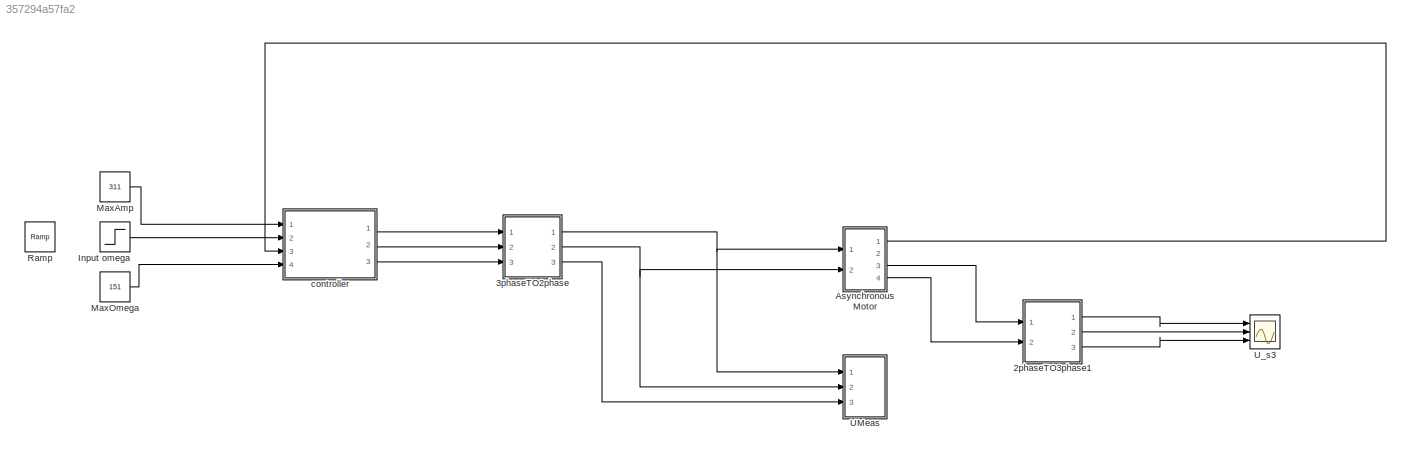
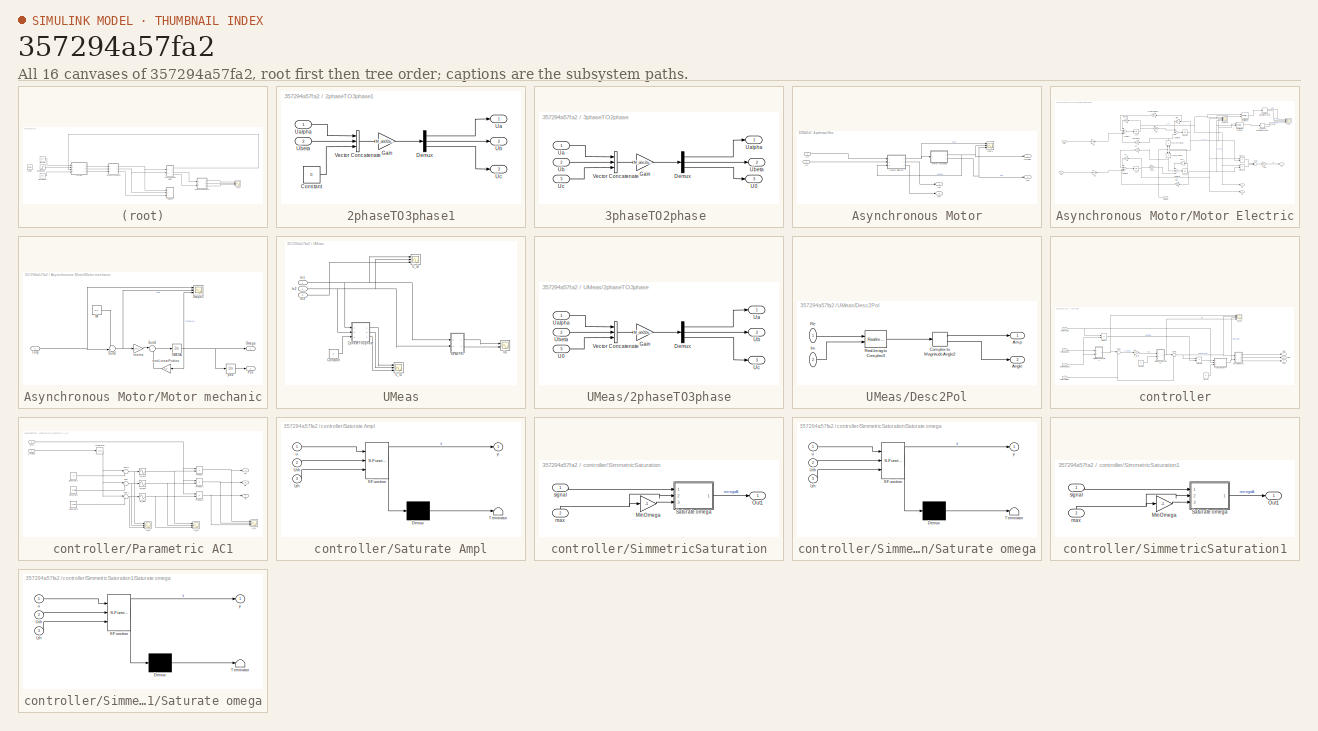
[diagram: thumbnail index - all 16 canvases of the model, root first then tree order]
MODEL slx_357294a57fa2
KIND model
CONFIG AbsTol = auto
CONFIG FixedStep = 0.00005
CONFIG MaxStep = auto
CONFIG MinStep = auto
CONFIG RelTol = 1e-3
CONFIG SampleTimeConstraint = Unconstrained
CONFIG Solver = FixedStepAuto
CONFIG SolverMode = Auto
CONFIG SolverName = FixedStepAuto
CONFIG StartTime = 0.0
CONFIG StopTime = 3
BLOCK [SubSystem] 2phaseTO3phase1
  Ports = [2, 3]
  RequestExecContextInheritance = off
  Variant = off
BLOCK [Constant] 2phaseTO3phase1/Constant
  Value = 0
BLOCK [Demux] 2phaseTO3phase1/Demux
  DisplayOption = bar
  Outputs = 3
  Ports = [1, 3]
BLOCK [Gain] 2phaseTO3phase1/Gain
  Gain = M_ab02abc
  Multiplication = Matrix(K*u)
  OutDataTypeStr = Inherit: Inherit via internal rule
  ParamDataTypeStr = Inherit: Inherit via internal rule
  SaturateOnIntegerOverflow = off
BLOCK [Outport] 2phaseTO3phase1/Ua
  IconDisplay = Port number
BLOCK [Inport] 2phaseTO3phase1/Ualpha
  IconDisplay = Port number
BLOCK [Outport] 2phaseTO3phase1/Ub
  IconDisplay = Port number
  Port = 2
BLOCK [Inport] 2phaseTO3phase1/Ubeta
  IconDisplay = Port number
  Port = 2
BLOCK [Outport] 2phaseTO3phase1/Uc
  IconDisplay = Port number
  Port = 3
BLOCK [Concatenate] 2phaseTO3phase1/Vector Concatenate
  NumInputs = 3
  Ports = [3, 1]
BLOCK [SubSystem] 3phaseTO2phase 
  Ports = [3, 3]
  RequestExecContextInheritance = off
  Variant = off
BLOCK [Demux] 3phaseTO2phase /Demux
  DisplayOption = bar
  Outputs = 3
  Ports = [1, 3]
BLOCK [Gain] 3phaseTO2phase /Gain
  Gain = M_abc2ab0
  Multiplication = Matrix(K*u)
  OutDataTypeStr = Inherit: Inherit via internal rule
  ParamDataTypeStr = Inherit: Inherit via internal rule
  SaturateOnIntegerOverflow = off
BLOCK [Outport] 3phaseTO2phase /U0
  IconDisplay = Port number
  Port = 3
BLOCK [Inport] 3phaseTO2phase /Ua
  IconDisplay = Port number
BLOCK [Outport] 3phaseTO2phase /Ualpha
  IconDisplay = Port number
BLOCK [Inport] 3phaseTO2phase /Ub
  IconDisplay = Port number
  Port = 2
BLOCK [Outport] 3phaseTO2phase /Ubeta
  IconDisplay = Port number
  Port = 2
BLOCK [Inport] 3phaseTO2phase /Uc
  IconDisplay = Port number
  Port = 3
BLOCK [Concatenate] 3phaseTO2phase /Vector Concatenate
  NumInputs = 3
  Ports = [3, 1]
BLOCK [SubSystem] Asynchronous Motor
  Ports = [2, 4]
  RequestExecContextInheritance = off
  Variant = off
BLOCK [Outport] Asynchronous Motor/Isd
  IconDisplay = Port number
  Port = 3
BLOCK [Outport] Asynchronous Motor/Isq
  IconDisplay = Port number
  Port = 4
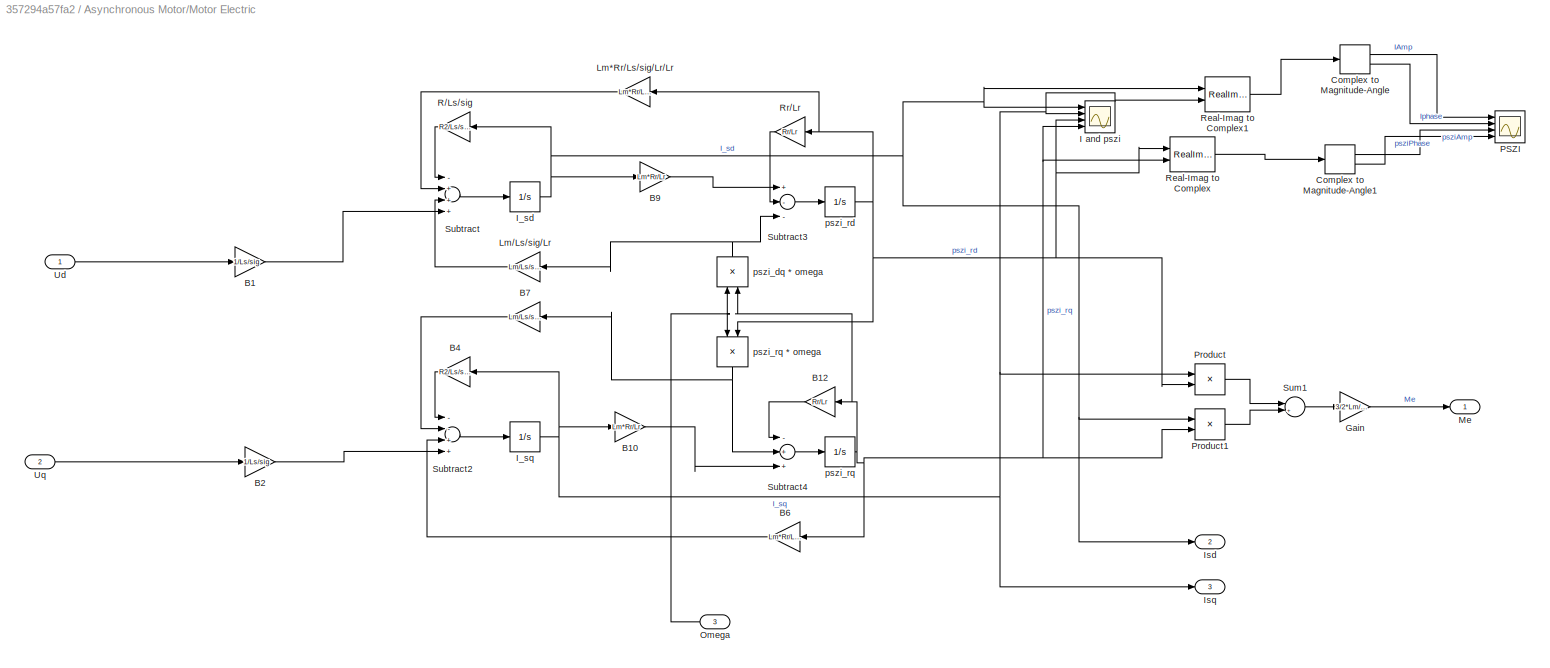
BLOCK [SubSystem] Asynchronous Motor/Motor Electric
  Ports = [3, 3]
  RequestExecContextInheritance = off
  Variant = off
BLOCK [Gain] Asynchronous Motor/Motor Electric/B1
  Gain = 1/Ls/sig
  Multiplication = Matrix(K*u)
  OutDataTypeStr = Inherit: Inherit via internal rule
  ParamDataTypeStr = Inherit: Inherit via internal rule
  SaturateOnIntegerOverflow = off
BLOCK [Gain] Asynchronous Motor/Motor Electric/B10
  Gain = Lm*Rr/Lr
  Multiplication = Matrix(K*u)
  OutDataTypeStr = Inherit: Inherit via internal rule
  ParamDataTypeStr = Inherit: Inherit via internal rule
  SaturateOnIntegerOverflow = off
BLOCK [Gain] Asynchronous Motor/Motor Electric/B12
  Gain = Rr/Lr
  Multiplication = Matrix(K*u)
  OutDataTypeStr = Inherit: Inherit via internal rule
  ParamDataTypeStr = Inherit: Inherit via internal rule
  SaturateOnIntegerOverflow = off
BLOCK [Gain] Asynchronous Motor/Motor Electric/B2
  Gain = 1/Ls/sig
  Multiplication = Matrix(K*u)
  OutDataTypeStr = Inherit: Inherit via internal rule
  ParamDataTypeStr = Inherit: Inherit via internal rule
  SaturateOnIntegerOverflow = off
BLOCK [Gain] Asynchronous Motor/Motor Electric/B4
  Gain = R2/Ls/sig
  Multiplication = Matrix(K*u)
  OutDataTypeStr = Inherit: Inherit via internal rule
  ParamDataTypeStr = Inherit: Inherit via internal rule
  SaturateOnIntegerOverflow = off
BLOCK [Gain] Asynchronous Motor/Motor Electric/B6
  Gain = Lm*Rr/Ls/sig/Lr/Lr
  Multiplication = Matrix(K*u)
  OutDataTypeStr = Inherit: Inherit via internal rule
  ParamDataTypeStr = Inherit: Inherit via internal rule
  SaturateOnIntegerOverflow = off
BLOCK [Gain] Asynchronous Motor/Motor Electric/B7
  Gain = Lm/Ls/sig/Lr
  Multiplication = Matrix(K*u)
  OutDataTypeStr = Inherit: Inherit via internal rule
  ParamDataTypeStr = Inherit: Inherit via internal rule
  SaturateOnIntegerOverflow = off
BLOCK [Gain] Asynchronous Motor/Motor Electric/B9
  Gain = Lm*Rr/Lr
  Multiplication = Matrix(K*u)
  OutDataTypeStr = Inherit: Inherit via internal rule
  ParamDataTypeStr = Inherit: Inherit via internal rule
  SaturateOnIntegerOverflow = off
BLOCK [ComplexToMagnitudeAngle] Asynchronous Motor/Motor Electric/Complex to Magnitude-Angle
  Ports = [1, 2]
BLOCK [ComplexToMagnitudeAngle] Asynchronous Motor/Motor Electric/Complex to Magnitude-Angle1
  Ports = [1, 2]
BLOCK [Gain] Asynchronous Motor/Motor Electric/Gain
  Gain = 3/2*Lm/Lr*p
  OutDataTypeStr = Inherit: Inherit via internal rule
  ParamDataTypeStr = Inherit: Inherit via internal rule
  SaturateOnIntegerOverflow = off
BLOCK [Scope] Asynchronous Motor/Motor Electric/I and pszi
  NumInputPorts = 4
  Ports = [4]
  ScopeSpecificationString = Simulink.scopes.TimeScopeBlockCfg('CurrentConfiguration', extmgr.ConfigurationSet(extmgr.Configuration('Core','General UI',true),extmgr.Configuration('Core','Source UI',true),extmgr.Configuration('Sources','WiredSimulink',true),extmgr.Configuration('Visuals','Time Domain',true,'SerializedDisplays',{struct('MinYLimReal','-0.35721','MaxYLimReal','0.2837','YLabelReal','','MinYLimMag','0.00000','MaxYL...<+1422ch>
BLOCK [Integrator] Asynchronous Motor/Motor Electric/I_sd
  Ports = [1, 1]
BLOCK [Integrator] Asynchronous Motor/Motor Electric/I_sq
  Ports = [1, 1]
BLOCK [Outport] Asynchronous Motor/Motor Electric/Isd
  IconDisplay = Port number
  Port = 2
BLOCK [Outport] Asynchronous Motor/Motor Electric/Isq
  IconDisplay = Port number
  Port = 3
BLOCK [Gain] Asynchronous Motor/Motor Electric/Lm*Rr//Ls//sig//Lr//Lr
  Gain = Lm*Rr/Ls/sig/Lr/Lr
  Multiplication = Matrix(K*u)
  OutDataTypeStr = Inherit: Inherit via internal rule
  ParamDataTypeStr = Inherit: Inherit via internal rule
  SaturateOnIntegerOverflow = off
BLOCK [Gain] Asynchronous Motor/Motor Electric/Lm//Ls//sig//Lr
  Gain = Lm/Ls/sig/Lr
  Multiplication = Matrix(K*u)
  OutDataTypeStr = Inherit: Inherit via internal rule
  ParamDataTypeStr = Inherit: Inherit via internal rule
  SaturateOnIntegerOverflow = off
BLOCK [Outport] Asynchronous Motor/Motor Electric/Me
  IconDisplay = Port number
BLOCK [Inport] Asynchronous Motor/Motor Electric/Omega
  IconDisplay = Port number
  Port = 3
BLOCK [Scope] Asynchronous Motor/Motor Electric/PSZI
  NumInputPorts = 4
  Ports = [4]
  ScopeSpecificationString = Simulink.scopes.TimeScopeBlockCfg('CurrentConfiguration', extmgr.ConfigurationSet(extmgr.Configuration('Core','General UI',true),extmgr.Configuration('Core','Source UI',true),extmgr.Configuration('Sources','WiredSimulink',true,'DataLoggingVariableName','ScopeData2'),extmgr.Configuration('Visuals','Time Domain',true,'SerializedDisplays',{struct('MinYLimReal','-0.98955','MaxYLimReal','8.90592','YLab...<+3526ch>
BLOCK [Product] Asynchronous Motor/Motor Electric/Product
  InputSameDT = off
  OutDataTypeStr = Inherit: Inherit via internal rule
  Ports = [2, 1]
  RndMeth = Floor
  SaturateOnIntegerOverflow = off
BLOCK [Product] Asynchronous Motor/Motor Electric/Product1
  InputSameDT = off
  OutDataTypeStr = Inherit: Inherit via internal rule
  Ports = [2, 1]
  RndMeth = Floor
  SaturateOnIntegerOverflow = off
BLOCK [Gain] Asynchronous Motor/Motor Electric/R//Ls//sig
  Gain = R2/Ls/sig
  Multiplication = Matrix(K*u)
  OutDataTypeStr = Inherit: Inherit via internal rule
  ParamDataTypeStr = Inherit: Inherit via internal rule
  SaturateOnIntegerOverflow = off
BLOCK [RealImagToComplex] Asynchronous Motor/Motor Electric/Real-Imag to Complex
  Ports = [2, 1]
BLOCK [RealImagToComplex] Asynchronous Motor/Motor Electric/Real-Imag to Complex1
  Ports = [2, 1]
BLOCK [Gain] Asynchronous Motor/Motor Electric/Rr//Lr
  Gain = Rr/Lr
  Multiplication = Matrix(K*u)
  OutDataTypeStr = Inherit: Inherit via internal rule
  ParamDataTypeStr = Inherit: Inherit via internal rule
  SaturateOnIntegerOverflow = off
BLOCK [Sum] Asynchronous Motor/Motor Electric/Subtract
  InputSameDT = off
  Inputs = -+++
  OutDataTypeStr = Inherit: Inherit via internal rule
  Ports = [4, 1]
  SaturateOnIntegerOverflow = off
BLOCK [Sum] Asynchronous Motor/Motor Electric/Subtract2
  InputSameDT = off
  Inputs = --++
  OutDataTypeStr = Inherit: Inherit via internal rule
  Ports = [4, 1]
  SaturateOnIntegerOverflow = off
BLOCK [Sum] Asynchronous Motor/Motor Electric/Subtract3
  InputSameDT = off
  Inputs = +--
  OutDataTypeStr = Inherit: Inherit via internal rule
  Ports = [3, 1]
  SaturateOnIntegerOverflow = off
BLOCK [Sum] Asynchronous Motor/Motor Electric/Subtract4
  InputSameDT = off
  Inputs = -++
  OutDataTypeStr = Inherit: Inherit via internal rule
  Ports = [3, 1]
  SaturateOnIntegerOverflow = off
BLOCK [Sum] Asynchronous Motor/Motor Electric/Sum1
  IconShape = round
  InputSameDT = off
  Inputs = |+-|
  OutDataTypeStr = Inherit: Inherit via internal rule
  Ports = [2, 1]
  SaturateOnIntegerOverflow = off
BLOCK [Inport] Asynchronous Motor/Motor Electric/Ud
  IconDisplay = Port number
BLOCK [Inport] Asynchronous Motor/Motor Electric/Uq
  IconDisplay = Port number
  Port = 2
BLOCK [Product] Asynchronous Motor/Motor Electric/pszi_dq * omega
  InputSameDT = off
  OutDataTypeStr = Inherit: Inherit via internal rule
  Ports = [2, 1]
  RndMeth = Floor
  SaturateOnIntegerOverflow = off
BLOCK [Integrator] Asynchronous Motor/Motor Electric/pszi_rd
  Ports = [1, 1]
BLOCK [Integrator] Asynchronous Motor/Motor Electric/pszi_rq 
  Ports = [1, 1]
BLOCK [Product] Asynchronous Motor/Motor Electric/pszi_rq * omega
  InputSameDT = off
  OutDataTypeStr = Inherit: Inherit via internal rule
  Ports = [2, 1]
  RndMeth = Floor
  SaturateOnIntegerOverflow = off
BLOCK [SubSystem] Asynchronous Motor/Motor mechanic
  Ports = [1, 2]
  RequestExecContextInheritance = off
  Variant = off
BLOCK [Gain] Asynchronous Motor/Motor mechanic/Inertia
  Gain = 1/0.1
  OutDataTypeStr = Inherit: Inherit via internal rule
  ParamDataTypeStr = Inherit: Inherit via internal rule
  SaturateOnIntegerOverflow = off
BLOCK [Constant] Asynchronous Motor/Motor mechanic/Mt
  Value = 0.2
BLOCK [Integrator] Asynchronous Motor/Motor mechanic/OMEGA
  Ports = [1, 1]
BLOCK [Outport] Asynchronous Motor/Motor mechanic/Omega
  IconDisplay = Port number
BLOCK [Outport] Asynchronous Motor/Motor mechanic/Pos
  IconDisplay = Port number
  Port = 2
BLOCK [Scope] Asynchronous Motor/Motor mechanic/Scope2
  NumInputPorts = 3
  Ports = [3]
  ScopeSpecificationString = Simulink.scopes.TimeScopeBlockCfg('CurrentConfiguration', extmgr.ConfigurationSet(extmgr.Configuration('Core','General UI',true),extmgr.Configuration('Core','Source UI',true),extmgr.Configuration('Sources','WiredSimulink',true,'DataLoggingVariableName','ScopeData2'),extmgr.Configuration('Visuals','Time Domain',true,'SerializedDisplays',{struct('MinYLimReal','90.00000','MaxYLimReal','110.00000','YL...<+2799ch>
BLOCK [Sum] Asynchronous Motor/Motor mechanic/Sum2
  IconShape = round
  InputSameDT = off
  Inputs = -+|
  OutDataTypeStr = Inherit: Inherit via internal rule
  Ports = [2, 1]
  SaturateOnIntegerOverflow = off
BLOCK [Sum] Asynchronous Motor/Motor mechanic/Sum3
  IconShape = round
  InputSameDT = off
  Inputs = |+-
  OutDataTypeStr = Inherit: Inherit via internal rule
  Ports = [2, 1]
  SaturateOnIntegerOverflow = off
BLOCK [Inport] Asynchronous Motor/Motor mechanic/Torq 
  IconDisplay = Port number
BLOCK [Gain] Asynchronous Motor/Motor mechanic/nonLinearFriction
  Gain = 0.2
  OutDataTypeStr = Inherit: Inherit via internal rule
  ParamDataTypeStr = Inherit: Inherit via internal rule
  SaturateOnIntegerOverflow = off
BLOCK [Integrator] Asynchronous Motor/Motor mechanic/pos
  Ports = [1, 1]
  WrapState = on
BLOCK [Outport] Asynchronous Motor/Omega
  IconDisplay = Port number
BLOCK [Outport] Asynchronous Motor/Pos
  IconDisplay = Port number
  Port = 2
BLOCK [Inport] Asynchronous Motor/Ud
  IconDisplay = Port number
BLOCK [Inport] Asynchronous Motor/Us
  IconDisplay = Port number
  Port = 2
BLOCK [Scope] Asynchronous Motor/test1
  NumInputPorts = 3
  Ports = [3]
  ScopeSpecificationString = Simulink.scopes.TimeScopeBlockCfg('CurrentConfiguration', extmgr.ConfigurationSet(extmgr.Configuration('Core','General UI',true),extmgr.Configuration('Core','Source UI',true),extmgr.Configuration('Sources','WiredSimulink',true,'DataLoggingVariableName','ScopeData3'),extmgr.Configuration('Visuals','Time Domain',true,'SerializedDisplays',{struct('MinYLimReal','-12.36256','MaxYLimReal','79.84713','YL...<+1455ch>
BLOCK [Step] Input omega
  After = 50
  SampleTime = 0
  Time = 0.2
BLOCK [Constant] MaxAmp
  Value = 311
BLOCK [Constant] MaxOmega
  Value = 151
BLOCK [Reference] Ramp  REF=simulink/Sources/Ramp
  Ports = [0, 1]
  SourceBlock = simulink/Sources/Ramp
  SourceType = Ramp
BLOCK [SubSystem] UMeas
  Ports = [3]
  RequestExecContextInheritance = off
  Variant = off
BLOCK [SubSystem] UMeas/2phaseTO3phase
  Ports = [3, 3]
  RequestExecContextInheritance = off
  Variant = off
BLOCK [Demux] UMeas/2phaseTO3phase/Demux
  DisplayOption = bar
  Outputs = 3
  Ports = [1, 3]
BLOCK [Gain] UMeas/2phaseTO3phase/Gain
  Gain = M_ab02abc
  Multiplication = Matrix(K*u)
  OutDataTypeStr = Inherit: Inherit via internal rule
  ParamDataTypeStr = Inherit: Inherit via internal rule
  SaturateOnIntegerOverflow = off
BLOCK [Inport] UMeas/2phaseTO3phase/U0
  IconDisplay = Port number
  Port = 3
BLOCK [Outport] UMeas/2phaseTO3phase/Ua
  IconDisplay = Port number
BLOCK [Inport] UMeas/2phaseTO3phase/Ualpha
  IconDisplay = Port number
BLOCK [Outport] UMeas/2phaseTO3phase/Ub
  IconDisplay = Port number
  Port = 2
BLOCK [Inport] UMeas/2phaseTO3phase/Ubeta
  IconDisplay = Port number
  Port = 2
BLOCK [Outport] UMeas/2phaseTO3phase/Uc
  IconDisplay = Port number
  Port = 3
BLOCK [Concatenate] UMeas/2phaseTO3phase/Vector Concatenate
  NumInputs = 3
  Ports = [3, 1]
BLOCK [Constant] UMeas/Constant
  Value = 0
BLOCK [SubSystem] UMeas/Desc2Pol
  Ports = [2, 2]
  RequestExecContextInheritance = off
  Variant = off
BLOCK [Outport] UMeas/Desc2Pol/Amp
  IconDisplay = Port number
BLOCK [Outport] UMeas/Desc2Pol/Angle
  IconDisplay = Port number
  Port = 2
BLOCK [ComplexToMagnitudeAngle] UMeas/Desc2Pol/Complex to Magnitude-Angle2
  Ports = [1, 2]
BLOCK [Inport] UMeas/Desc2Pol/Im
  IconDisplay = Port number
  Port = 2
BLOCK [Inport] UMeas/Desc2Pol/Re
  IconDisplay = Port number
BLOCK [RealImagToComplex] UMeas/Desc2Pol/Real-Imag to Complex3
  Ports = [2, 1]
BLOCK [Inport] UMeas/In1
  IconDisplay = Port number
BLOCK [Inport] UMeas/In2
  IconDisplay = Port number
  Port = 2
BLOCK [Inport] UMeas/In3
  IconDisplay = Port number
  Port = 3
BLOCK [Scope] UMeas/U_s1
  NumInputPorts = 3
  Ports = [3]
  ScopeSpecificationString = Simulink.scopes.TimeScopeBlockCfg('CurrentConfiguration', extmgr.ConfigurationSet(extmgr.Configuration('Core','General UI',true),extmgr.Configuration('Core','Source UI',true),extmgr.Configuration('Sources','WiredSimulink',true,'DataLoggingVariableName','ScopeData6'),extmgr.Configuration('Visuals','Time Domain',true,'SerializedDisplays',{struct('MinYLimReal','-249.99997','MaxYLimReal','249.99975','...<+1448ch>
BLOCK [Scope] UMeas/U_s2
  NumInputPorts = 3
  Ports = [3]
  ScopeSpecificationString = Simulink.scopes.TimeScopeBlockCfg('CurrentConfiguration', extmgr.ConfigurationSet(extmgr.Configuration('Core','General UI',true),extmgr.Configuration('Core','Source UI',true),extmgr.Configuration('Sources','WiredSimulink',true,'DataLoggingVariableName','ScopeData4'),extmgr.Configuration('Visuals','Time Domain',true,'SerializedDisplays',{struct('MinYLimReal','-333.33333','MaxYLimReal','333.33333','...<+1422ch>
BLOCK [Scope] UMeas/Us
  NumInputPorts = 2
  Ports = [2]
  ScopeSpecificationString = Simulink.scopes.TimeScopeBlockCfg('CurrentConfiguration', extmgr.ConfigurationSet(extmgr.Configuration('Core','General UI',true),extmgr.Configuration('Core','Source UI',true),extmgr.Configuration('Sources','WiredSimulink',true,'DataLoggingVariableName','ScopeData5'),extmgr.Configuration('Visuals','Time Domain',true,'SerializedDisplays',{struct('MinYLimReal','-35.68953','MaxYLimReal','300.2618','YL...<+1443ch>
BLOCK [Scope] U_s3
  NumInputPorts = 3
  Ports = [3]
  ScopeSpecificationString = Simulink.scopes.TimeScopeBlockCfg('CurrentConfiguration', extmgr.ConfigurationSet(extmgr.Configuration('Core','General UI',true),extmgr.Configuration('Core','Source UI',true),extmgr.Configuration('Sources','WiredSimulink',true,'DataLoggingVariableName','ScopeData7'),extmgr.Configuration('Visuals','Time Domain',true,'SerializedDisplays',{struct('MinYLimReal','-27.47781','MaxYLimReal','28.93227','YL...<+1441ch>
BLOCK [SubSystem] controller
  Ports = [4, 3]
  RequestExecContextInheritance = off
  Variant = off
BLOCK [Product] controller/AmpAmp
  InputSameDT = off
  OutDataTypeStr = Inherit: Inherit via internal rule
  Ports = [2, 1]
  RndMeth = Floor
  SaturateOnIntegerOverflow = off
BLOCK [Gain] controller/C_torq
  Gain = 0.2
  OutDataTypeStr = Inherit: Inherit via internal rule
  ParamDataTypeStr = Inherit: Inherit via internal rule
  SaturateOnIntegerOverflow = off
BLOCK [Product] controller/Divide2
  InputSameDT = off
  Inputs = */
  OutDataTypeStr = Inherit: Inherit via internal rule
  Ports = [2, 1]
BLOCK [Constant] controller/MaxSlip
  Value = 3
BLOCK [Constant] controller/MinAmp
  Value = 5
BLOCK [Inport] controller/NominalAmp
  IconDisplay = Port number
BLOCK [Inport] controller/NominalOmega
  IconDisplay = Port number
  Port = 4
BLOCK [Outport] controller/Out1
  IconDisplay = Port number
BLOCK [Outport] controller/Out2
  IconDisplay = Port number
  Port = 2
BLOCK [Outport] controller/Out3
  IconDisplay = Port number
  Port = 3
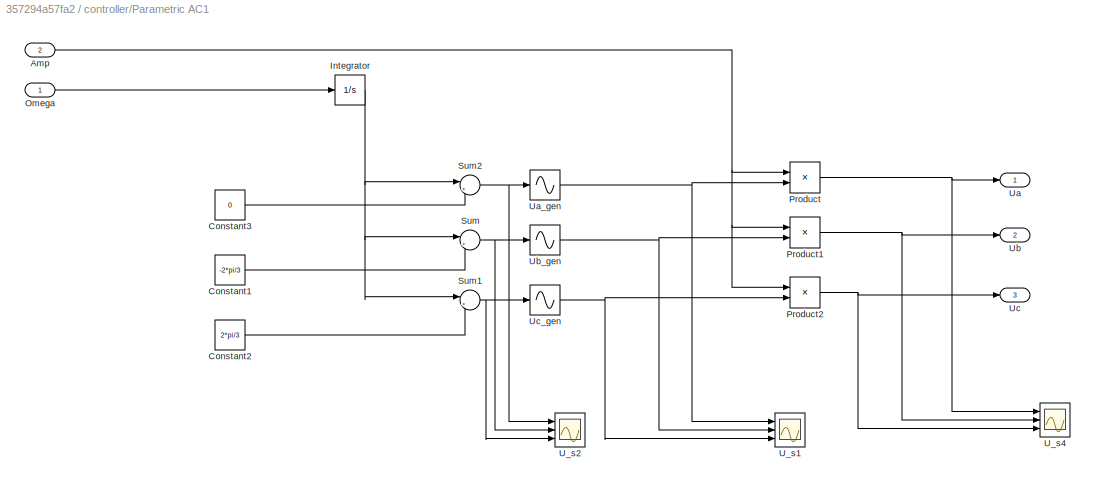
BLOCK [SubSystem] controller/Parametric AC1
  Ports = [2, 3]
  RequestExecContextInheritance = off
  Variant = off
BLOCK [Inport] controller/Parametric AC1/Amp
  IconDisplay = Port number
  Port = 2
BLOCK [Constant] controller/Parametric AC1/Constant1
  Value = -2*pi/3
BLOCK [Constant] controller/Parametric AC1/Constant2
  Value = 2*pi/3
BLOCK [Constant] controller/Parametric AC1/Constant3
  Value = 0
BLOCK [Integrator] controller/Parametric AC1/Integrator
  Ports = [1, 1]
  WrapState = on
BLOCK [Inport] controller/Parametric AC1/Omega
  IconDisplay = Port number
BLOCK [Product] controller/Parametric AC1/Product
  InputSameDT = off
  OutDataTypeStr = Inherit: Inherit via internal rule
  Ports = [2, 1]
  RndMeth = Floor
  SaturateOnIntegerOverflow = off
BLOCK [Product] controller/Parametric AC1/Product1
  InputSameDT = off
  OutDataTypeStr = Inherit: Inherit via internal rule
  Ports = [2, 1]
  RndMeth = Floor
  SaturateOnIntegerOverflow = off
BLOCK [Product] controller/Parametric AC1/Product2
  InputSameDT = off
  OutDataTypeStr = Inherit: Inherit via internal rule
  Ports = [2, 1]
  RndMeth = Floor
  SaturateOnIntegerOverflow = off
BLOCK [Sum] controller/Parametric AC1/Sum
  IconShape = round
  InputSameDT = off
  Inputs = |++
  OutDataTypeStr = Inherit: Inherit via internal rule
  Ports = [2, 1]
  SaturateOnIntegerOverflow = off
BLOCK [Sum] controller/Parametric AC1/Sum1
  IconShape = round
  InputSameDT = off
  Inputs = |++
  OutDataTypeStr = Inherit: Inherit via internal rule
  Ports = [2, 1]
  SaturateOnIntegerOverflow = off
BLOCK [Sum] controller/Parametric AC1/Sum2
  IconShape = round
  InputSameDT = off
  Inputs = |++
  OutDataTypeStr = Inherit: Inherit via internal rule
  Ports = [2, 1]
  SaturateOnIntegerOverflow = off
BLOCK [Scope] controller/Parametric AC1/U_s1
  NumInputPorts = 3
  Ports = [3]
  ScopeSpecificationString = Simulink.scopes.TimeScopeBlockCfg('CurrentConfiguration', extmgr.ConfigurationSet(extmgr.Configuration('Core','General UI',true),extmgr.Configuration('Core','Source UI',true),extmgr.Configuration('Sources','WiredSimulink',true,'DataLoggingVariableName','ScopeData9'),extmgr.Configuration('Visuals','Time Domain',true,'SerializedDisplays',{struct('MinYLimReal','-1.25','MaxYLimReal','1.25','YLabelReal...<+1391ch>
BLOCK [Scope] controller/Parametric AC1/U_s2
  NumInputPorts = 3
  Ports = [3]
  ScopeSpecificationString = Simulink.scopes.TimeScopeBlockCfg('CurrentConfiguration', extmgr.ConfigurationSet(extmgr.Configuration('Core','General UI',true),extmgr.Configuration('Core','Source UI',true),extmgr.Configuration('Sources','WiredSimulink',true,'DataLoggingVariableName','ScopeData10'),extmgr.Configuration('Visuals','Time Domain',true,'SerializedDisplays',{struct('MinYLimReal','-6.54476','MaxYLimReal','6.54422','YLa...<+1410ch>
BLOCK [Scope] controller/Parametric AC1/U_s4
  NumInputPorts = 3
  Ports = [3]
  ScopeSpecificationString = Simulink.scopes.TimeScopeBlockCfg('CurrentConfiguration', extmgr.ConfigurationSet(extmgr.Configuration('Core','General UI',true),extmgr.Configuration('Core','Source UI',true),extmgr.Configuration('Sources','WiredSimulink',true,'DataLoggingVariableName','ScopeData8'),extmgr.Configuration('Visuals','Time Domain',true,'SerializedDisplays',{struct('MinYLimReal','-49999.99999','MaxYLimReal','49999.9999...<+1464ch>
BLOCK [Outport] controller/Parametric AC1/Ua
  IconDisplay = Port number
BLOCK [Sin] controller/Parametric AC1/Ua_gen
  Ports = [1, 1]
  SampleTime = 0
  TimeSource = Use external signal
BLOCK [Outport] controller/Parametric AC1/Ub
  IconDisplay = Port number
  Port = 2
BLOCK [Sin] controller/Parametric AC1/Ub_gen
  Ports = [1, 1]
  SampleTime = 0
  TimeSource = Use external signal
BLOCK [Outport] controller/Parametric AC1/Uc
  IconDisplay = Port number
  Port = 3
BLOCK [Sin] controller/Parametric AC1/Uc_gen
  Ports = [1, 1]
  SampleTime = 0
  TimeSource = Use external signal
BLOCK [SubSystem] controller/Saturate Ampl
  ErrorFcn = Stateflow.Translate.translate
  PermitHierarchicalResolution = ExplicitOnly
  Ports = [3, 1]
  RequestExecContextInheritance = off
  SFBlockType = MATLAB Function
  TreatAsAtomicUnit = on
  Variant = off
BLOCK [Demux] controller/Saturate Ampl/ Demux 
  Outputs = 1
  Ports = [1, 1]
BLOCK [S-Function] controller/Saturate Ampl/ SFunction 
  EnableBusSupport = on
  FunctionName = sf_sfun
  PortCounts = [3 2]
  Ports = [3, 2]
  SFunctionDeploymentMode = off
  Tag = Stateflow S-Function VFcontrol01 1
BLOCK [Terminator] controller/Saturate Ampl/ Terminator 
BLOCK [Inport] controller/Saturate Ampl/Lth
  IconDisplay = Port number
  Port = 3
BLOCK [Inport] controller/Saturate Ampl/Uth
  IconDisplay = Port number
  Port = 2
BLOCK [Inport] controller/Saturate Ampl/u
  IconDisplay = Port number
BLOCK [Outport] controller/Saturate Ampl/y
  IconDisplay = Port number
BLOCK [SubSystem] controller/SimmetricSaturation
  Ports = [2, 1]
  RequestExecContextInheritance = off
  Variant = off
BLOCK [Gain] controller/SimmetricSaturation/MinOmega
  Gain = -1
  OutDataTypeStr = Inherit: Inherit via internal rule
  ParamDataTypeStr = Inherit: Inherit via internal rule
  SaturateOnIntegerOverflow = off
BLOCK [Outport] controller/SimmetricSaturation/Out1
  IconDisplay = Port number
BLOCK [SubSystem] controller/SimmetricSaturation/Saturate omega
  ErrorFcn = Stateflow.Translate.translate
  PermitHierarchicalResolution = ExplicitOnly
  Ports = [3, 1]
  RequestExecContextInheritance = off
  SFBlockType = MATLAB Function
  TreatAsAtomicUnit = on
  Variant = off
BLOCK [Demux] controller/SimmetricSaturation/Saturate omega/ Demux 
  Outputs = 1
  Ports = [1, 1]
BLOCK [S-Function] controller/SimmetricSaturation/Saturate omega/ SFunction 
  EnableBusSupport = on
  FunctionName = sf_sfun
  PortCounts = [3 2]
  Ports = [3, 2]
  SFunctionDeploymentMode = off
  Tag = Stateflow S-Function VFcontrol01 3
BLOCK [Terminator] controller/SimmetricSaturation/Saturate omega/ Terminator 
BLOCK [Inport] controller/SimmetricSaturation/Saturate omega/Lth
  IconDisplay = Port number
  Port = 3
BLOCK [Inport] controller/SimmetricSaturation/Saturate omega/Uth
  IconDisplay = Port number
  Port = 2
BLOCK [Inport] controller/SimmetricSaturation/Saturate omega/u
  IconDisplay = Port number
BLOCK [Outport] controller/SimmetricSaturation/Saturate omega/y
  IconDisplay = Port number
BLOCK [Inport] controller/SimmetricSaturation/max
  IconDisplay = Port number
  Port = 2
BLOCK [Inport] controller/SimmetricSaturation/signal
  IconDisplay = Port number
BLOCK [SubSystem] controller/SimmetricSaturation1
  Ports = [2, 1]
  RequestExecContextInheritance = off
  Variant = off
BLOCK [Gain] controller/SimmetricSaturation1/MinOmega
  Gain = -1
  OutDataTypeStr = Inherit: Inherit via internal rule
  ParamDataTypeStr = Inherit: Inherit via internal rule
  SaturateOnIntegerOverflow = off
BLOCK [Outport] controller/SimmetricSaturation1/Out1
  IconDisplay = Port number
BLOCK [SubSystem] controller/SimmetricSaturation1/Saturate omega
  ErrorFcn = Stateflow.Translate.translate
  PermitHierarchicalResolution = ExplicitOnly
  Ports = [3, 1]
  RequestExecContextInheritance = off
  SFBlockType = MATLAB Function
  TreatAsAtomicUnit = on
  Variant = off
BLOCK [Demux] controller/SimmetricSaturation1/Saturate omega/ Demux 
  Outputs = 1
  Ports = [1, 1]
BLOCK [S-Function] controller/SimmetricSaturation1/Saturate omega/ SFunction 
  EnableBusSupport = on
  FunctionName = sf_sfun
  PortCounts = [3 2]
  Ports = [3, 2]
  SFunctionDeploymentMode = off
  Tag = Stateflow S-Function VFcontrol01 4
BLOCK [Terminator] controller/SimmetricSaturation1/Saturate omega/ Terminator 
BLOCK [Inport] controller/SimmetricSaturation1/Saturate omega/Lth
  IconDisplay = Port number
  Port = 3
BLOCK [Inport] controller/SimmetricSaturation1/Saturate omega/Uth
  IconDisplay = Port number
  Port = 2
BLOCK [Inport] controller/SimmetricSaturation1/Saturate omega/u
  IconDisplay = Port number
BLOCK [Outport] controller/SimmetricSaturation1/Saturate omega/y
  IconDisplay = Port number
BLOCK [Inport] controller/SimmetricSaturation1/max
  IconDisplay = Port number
  Port = 2
BLOCK [Inport] controller/SimmetricSaturation1/signal
  IconDisplay = Port number
BLOCK [Sum] controller/Sum1
  IconShape = round
  InputSameDT = off
  Inputs = |+-
  OutDataTypeStr = Inherit: Inherit via internal rule
  Ports = [2, 1]
  SaturateOnIntegerOverflow = off
BLOCK [Sum] controller/Sum2
  IconShape = round
  InputSameDT = off
  Inputs = |++
  OutDataTypeStr = Inherit: Inherit via internal rule
  Ports = [2, 1]
  SaturateOnIntegerOverflow = off
BLOCK [Scope] controller/U_s4
  NumInputPorts = 4
  Ports = [4]
  ScopeSpecificationString = Simulink.scopes.TimeScopeBlockCfg('CurrentConfiguration', extmgr.ConfigurationSet(extmgr.Configuration('Core','General UI',true),extmgr.Configuration('Core','Source UI',true),extmgr.Configuration('Sources','WiredSimulink',true,'DataLoggingVariableName','ScopeData1'),extmgr.Configuration('Visuals','Time Domain',true,'SerializedDisplays',{struct('MinYLimReal','-9.26284','MaxYLimReal','61.74591','YLa...<+1516ch>
BLOCK [Inport] controller/motorOmega
  IconDisplay = Port number
  Port = 3
BLOCK [Inport] controller/omegaBase
  IconDisplay = Port number
  Port = 2
LINE 2phaseTO3phase1/Constant:1 -> 2phaseTO3phase1/Vector Concatenate:3
LINE 2phaseTO3phase1/Demux:1 -> 2phaseTO3phase1/Ua:1
LINE 2phaseTO3phase1/Demux:2 -> 2phaseTO3phase1/Ub:1
LINE 2phaseTO3phase1/Demux:3 -> 2phaseTO3phase1/Uc:1
LINE 2phaseTO3phase1/Gain:1 -> 2phaseTO3phase1/Demux:1
LINE 2phaseTO3phase1/Ualpha:1 -> 2phaseTO3phase1/Vector Concatenate:1
LINE 2phaseTO3phase1/Ubeta:1 -> 2phaseTO3phase1/Vector Concatenate:2
LINE 2phaseTO3phase1/Vector Concatenate:1 -> 2phaseTO3phase1/Gain:1
LINE 2phaseTO3phase1:1 -> U_s3:1
LINE 2phaseTO3phase1:2 -> U_s3:2
LINE 2phaseTO3phase1:3 -> U_s3:3
LINE 3phaseTO2phase /Demux:1 -> 3phaseTO2phase /Ualpha:1
LINE 3phaseTO2phase /Demux:2 -> 3phaseTO2phase /Ubeta:1
LINE 3phaseTO2phase /Demux:3 -> 3phaseTO2phase /U0:1
LINE 3phaseTO2phase /Gain:1 -> 3phaseTO2phase /Demux:1
LINE 3phaseTO2phase /Ua:1 -> 3phaseTO2phase /Vector Concatenate:1
LINE 3phaseTO2phase /Ub:1 -> 3phaseTO2phase /Vector Concatenate:2
LINE 3phaseTO2phase /Uc:1 -> 3phaseTO2phase /Vector Concatenate:3
LINE 3phaseTO2phase /Vector Concatenate:1 -> 3phaseTO2phase /Gain:1
NET 3phaseTO2phase :1 -> Asynchronous Motor:1, UMeas:1
NET 3phaseTO2phase :2 -> Asynchronous Motor:2, UMeas:2
LINE 3phaseTO2phase :3 -> UMeas:3
LINE Asynchronous Motor/Motor Electric/B10:1 -> Asynchronous Motor/Motor Electric/Subtract4:3
LINE Asynchronous Motor/Motor Electric/B12:1 -> Asynchronous Motor/Motor Electric/Subtract4:1
LINE Asynchronous Motor/Motor Electric/B1:1 -> Asynchronous Motor/Motor Electric/Subtract:4
LINE Asynchronous Motor/Motor Electric/B2:1 -> Asynchronous Motor/Motor Electric/Subtract2:4
LINE Asynchronous Motor/Motor Electric/B4:1 -> Asynchronous Motor/Motor Electric/Subtract2:1
LINE Asynchronous Motor/Motor Electric/B6:1 -> Asynchronous Motor/Motor Electric/Subtract2:3
LINE Asynchronous Motor/Motor Electric/B7:1 -> Asynchronous Motor/Motor Electric/Subtract2:2
LINE Asynchronous Motor/Motor Electric/B9:1 -> Asynchronous Motor/Motor Electric/Subtract3:1
LINE Asynchronous Motor/Motor Electric/Complex to Magnitude-Angle1:1 -> Asynchronous Motor/Motor Electric/PSZI:3
LINE Asynchronous Motor/Motor Electric/Complex to Magnitude-Angle1:2 -> Asynchronous Motor/Motor Electric/PSZI:4
LINE Asynchronous Motor/Motor Electric/Complex to Magnitude-Angle:1 -> Asynchronous Motor/Motor Electric/PSZI:1
LINE Asynchronous Motor/Motor Electric/Complex to Magnitude-Angle:2 -> Asynchronous Motor/Motor Electric/PSZI:2
LINE Asynchronous Motor/Motor Electric/Gain:1 -> Asynchronous Motor/Motor Electric/Me:1
NET Asynchronous Motor/Motor Electric/I_sd:1 -> Asynchronous Motor/Motor Electric/B9:1, Asynchronous Motor/Motor Electric/I and pszi:1, Asynchronous Motor/Motor Electric/Isd:1, Asynchronous Motor/Motor Electric/Product1:1, Asynchronous Motor/Motor Electric/R//Ls//sig:1, Asynchronous Motor/Motor Electric/Real-Imag to Complex1:1
NET Asynchronous Motor/Motor Electric/I_sq:1 -> Asynchronous Motor/Motor Electric/B10:1, Asynchronous Motor/Motor Electric/B4:1, Asynchronous Motor/Motor Electric/I and pszi:2, Asynchronous Motor/Motor Electric/Isq:1, Asynchronous Motor/Motor Electric/Product:1, Asynchronous Motor/Motor Electric/Real-Imag to Complex1:2
LINE Asynchronous Motor/Motor Electric/Lm*Rr//Ls//sig//Lr//Lr:1 -> Asynchronous Motor/Motor Electric/Subtract:2
LINE Asynchronous Motor/Motor Electric/Lm//Ls//sig//Lr:1 -> Asynchronous Motor/Motor Electric/Subtract:3
NET Asynchronous Motor/Motor Electric/Omega:1 -> Asynchronous Motor/Motor Electric/pszi_dq * omega:1, Asynchronous Motor/Motor Electric/pszi_rq * omega:1
LINE Asynchronous Motor/Motor Electric/Product1:1 -> Asynchronous Motor/Motor Electric/Sum1:2
LINE Asynchronous Motor/Motor Electric/Product:1 -> Asynchronous Motor/Motor Electric/Sum1:1
LINE Asynchronous Motor/Motor Electric/R//Ls//sig:1 -> Asynchronous Motor/Motor Electric/Subtract:1
LINE Asynchronous Motor/Motor Electric/Real-Imag to Complex1:1 -> Asynchronous Motor/Motor Electric/Complex to Magnitude-Angle:1
LINE Asynchronous Motor/Motor Electric/Real-Imag to Complex:1 -> Asynchronous Motor/Motor Electric/Complex to Magnitude-Angle1:1
LINE Asynchronous Motor/Motor Electric/Rr//Lr:1 -> Asynchronous Motor/Motor Electric/Subtract3:2
LINE Asynchronous Motor/Motor Electric/Subtract2:1 -> Asynchronous Motor/Motor Electric/I_sq:1
LINE Asynchronous Motor/Motor Electric/Subtract3:1 -> Asynchronous Motor/Motor Electric/pszi_rd:1
LINE Asynchronous Motor/Motor Electric/Subtract4:1 -> Asynchronous Motor/Motor Electric/pszi_rq :1
LINE Asynchronous Motor/Motor Electric/Subtract:1 -> Asynchronous Motor/Motor Electric/I_sd:1
LINE Asynchronous Motor/Motor Electric/Sum1:1 -> Asynchronous Motor/Motor Electric/Gain:1
LINE Asynchronous Motor/Motor Electric/Ud:1 -> Asynchronous Motor/Motor Electric/B1:1
LINE Asynchronous Motor/Motor Electric/Uq:1 -> Asynchronous Motor/Motor Electric/B2:1
NET Asynchronous Motor/Motor Electric/pszi_dq * omega:1 -> Asynchronous Motor/Motor Electric/Lm//Ls//sig//Lr:1, Asynchronous Motor/Motor Electric/Subtract3:3
NET Asynchronous Motor/Motor Electric/pszi_rd:1 -> Asynchronous Motor/Motor Electric/I and pszi:3, Asynchronous Motor/Motor Electric/Lm*Rr//Ls//sig//Lr//Lr:1, Asynchronous Motor/Motor Electric/Product:2, Asynchronous Motor/Motor Electric/Real-Imag to Complex:1, Asynchronous Motor/Motor Electric/Rr//Lr:1, Asynchronous Motor/Motor Electric/pszi_rq * omega:2
NET Asynchronous Motor/Motor Electric/pszi_rq * omega:1 -> Asynchronous Motor/Motor Electric/B7:1, Asynchronous Motor/Motor Electric/Subtract4:2
NET Asynchronous Motor/Motor Electric/pszi_rq :1 -> Asynchronous Motor/Motor Electric/B12:1, Asynchronous Motor/Motor Electric/B6:1, Asynchronous Motor/Motor Electric/I and pszi:4, Asynchronous Motor/Motor Electric/Product1:2, Asynchronous Motor/Motor Electric/Real-Imag to Complex:2, Asynchronous Motor/Motor Electric/pszi_dq * omega:2
NET Asynchronous Motor/Motor Electric:1 -> Asynchronous Motor/Motor mechanic:1, Asynchronous Motor/test1:1
LINE Asynchronous Motor/Motor Electric:2 -> Asynchronous Motor/Isd:1
LINE Asynchronous Motor/Motor Electric:3 -> Asynchronous Motor/Isq:1
LINE Asynchronous Motor/Motor mechanic/Inertia:1 -> Asynchronous Motor/Motor mechanic/Sum3:1
LINE Asynchronous Motor/Motor mechanic/Mt:1 -> Asynchronous Motor/Motor mechanic/Sum2:1
NET Asynchronous Motor/Motor mechanic/OMEGA:1 -> Asynchronous Motor/Motor mechanic/Omega:1, Asynchronous Motor/Motor mechanic/Scope2:3, Asynchronous Motor/Motor mechanic/nonLinearFriction:1, Asynchronous Motor/Motor mechanic/pos:1
NET Asynchronous Motor/Motor mechanic/Sum2:1 -> Asynchronous Motor/Motor mechanic/Inertia:1, Asynchronous Motor/Motor mechanic/Scope2:2
LINE Asynchronous Motor/Motor mechanic/Sum3:1 -> Asynchronous Motor/Motor mechanic/OMEGA:1
NET Asynchronous Motor/Motor mechanic/Torq :1 -> Asynchronous Motor/Motor mechanic/Scope2:1, Asynchronous Motor/Motor mechanic/Sum2:2
LINE Asynchronous Motor/Motor mechanic/nonLinearFriction:1 -> Asynchronous Motor/Motor mechanic/Sum3:2
LINE Asynchronous Motor/Motor mechanic/pos:1 -> Asynchronous Motor/Motor mechanic/Pos:1
NET Asynchronous Motor/Motor mechanic:1 -> Asynchronous Motor/Motor Electric:3, Asynchronous Motor/Omega:1, Asynchronous Motor/test1:2
NET Asynchronous Motor/Motor mechanic:2 -> Asynchronous Motor/Pos:1, Asynchronous Motor/test1:3
LINE Asynchronous Motor/Ud:1 -> Asynchronous Motor/Motor Electric:1
LINE Asynchronous Motor/Us:1 -> Asynchronous Motor/Motor Electric:2
LINE Asynchronous Motor:1 -> controller:3
LINE Asynchronous Motor:3 -> 2phaseTO3phase1:1
LINE Asynchronous Motor:4 -> 2phaseTO3phase1:2
LINE Input omega:1 -> controller:2
LINE MaxAmp:1 -> controller:1
LINE MaxOmega:1 -> controller:4
LINE UMeas/2phaseTO3phase/Demux:1 -> UMeas/2phaseTO3phase/Ua:1
LINE UMeas/2phaseTO3phase/Demux:2 -> UMeas/2phaseTO3phase/Ub:1
LINE UMeas/2phaseTO3phase/Demux:3 -> UMeas/2phaseTO3phase/Uc:1
LINE UMeas/2phaseTO3phase/Gain:1 -> UMeas/2phaseTO3phase/Demux:1
LINE UMeas/2phaseTO3phase/U0:1 -> UMeas/2phaseTO3phase/Vector Concatenate:3
LINE UMeas/2phaseTO3phase/Ualpha:1 -> UMeas/2phaseTO3phase/Vector Concatenate:1
LINE UMeas/2phaseTO3phase/Ubeta:1 -> UMeas/2phaseTO3phase/Vector Concatenate:2
LINE UMeas/2phaseTO3phase/Vector Concatenate:1 -> UMeas/2phaseTO3phase/Gain:1
LINE UMeas/2phaseTO3phase:1 -> UMeas/U_s1:1
LINE UMeas/2phaseTO3phase:2 -> UMeas/U_s1:2
LINE UMeas/2phaseTO3phase:3 -> UMeas/U_s1:3
LINE UMeas/Constant:1 -> UMeas/2phaseTO3phase:3
LINE UMeas/Desc2Pol/Complex to Magnitude-Angle2:1 -> UMeas/Desc2Pol/Amp:1
LINE UMeas/Desc2Pol/Complex to Magnitude-Angle2:2 -> UMeas/Desc2Pol/Angle:1
LINE UMeas/Desc2Pol/Im:1 -> UMeas/Desc2Pol/Real-Imag to Complex3:2
LINE UMeas/Desc2Pol/Re:1 -> UMeas/Desc2Pol/Real-Imag to Complex3:1
LINE UMeas/Desc2Pol/Real-Imag to Complex3:1 -> UMeas/Desc2Pol/Complex to Magnitude-Angle2:1
LINE UMeas/Desc2Pol:1 -> UMeas/Us:1
LINE UMeas/Desc2Pol:2 -> UMeas/Us:2
NET UMeas/In1:1 -> UMeas/2phaseTO3phase:1, UMeas/Desc2Pol:1, UMeas/U_s2:1
NET UMeas/In2:1 -> UMeas/2phaseTO3phase:2, UMeas/Desc2Pol:2, UMeas/U_s2:2
LINE UMeas/In3:1 -> UMeas/U_s2:3
LINE controller/AmpAmp:1 -> controller/Saturate Ampl:1
LINE controller/C_torq:1 -> controller/SimmetricSaturation1:1
LINE controller/Divide2:1 -> controller/AmpAmp:2
LINE controller/MaxSlip:1 -> controller/SimmetricSaturation1:2
LINE controller/MinAmp:1 -> controller/Saturate Ampl:3
NET controller/NominalAmp:1 -> controller/Divide2:1, controller/Saturate Ampl:2
NET controller/NominalOmega:1 -> controller/Divide2:2, controller/SimmetricSaturation:2
NET controller/Parametric AC1/Amp:1 -> controller/Parametric AC1/Product1:1, controller/Parametric AC1/Product2:1, controller/Parametric AC1/Product:1
LINE controller/Parametric AC1/Constant1:1 -> controller/Parametric AC1/Sum:2
LINE controller/Parametric AC1/Constant2:1 -> controller/Parametric AC1/Sum1:2
LINE controller/Parametric AC1/Constant3:1 -> controller/Parametric AC1/Sum2:2
NET controller/Parametric AC1/Integrator:1 -> controller/Parametric AC1/Sum1:1, controller/Parametric AC1/Sum2:1, controller/Parametric AC1/Sum:1
LINE controller/Parametric AC1/Omega:1 -> controller/Parametric AC1/Integrator:1
NET controller/Parametric AC1/Product1:1 -> controller/Parametric AC1/U_s4:2, controller/Parametric AC1/Ub:1
NET controller/Parametric AC1/Product2:1 -> controller/Parametric AC1/U_s4:3, controller/Parametric AC1/Uc:1
NET controller/Parametric AC1/Product:1 -> controller/Parametric AC1/U_s4:1, controller/Parametric AC1/Ua:1
NET controller/Parametric AC1/Sum1:1 -> controller/Parametric AC1/U_s2:3, controller/Parametric AC1/Uc_gen:1
NET controller/Parametric AC1/Sum2:1 -> controller/Parametric AC1/U_s2:1, controller/Parametric AC1/Ua_gen:1
NET controller/Parametric AC1/Sum:1 -> controller/Parametric AC1/U_s2:2, controller/Parametric AC1/Ub_gen:1
NET controller/Parametric AC1/Ua_gen:1 -> controller/Parametric AC1/Product:2, controller/Parametric AC1/U_s1:1
NET controller/Parametric AC1/Ub_gen:1 -> controller/Parametric AC1/Product1:2, controller/Parametric AC1/U_s1:2
NET controller/Parametric AC1/Uc_gen:1 -> controller/Parametric AC1/Product2:2, controller/Parametric AC1/U_s1:3
LINE controller/Parametric AC1:1 -> controller/Out1:1
LINE controller/Parametric AC1:2 -> controller/Out2:1
LINE controller/Parametric AC1:3 -> controller/Out3:1
NET controller/Saturate Ampl:1 -> controller/Parametric AC1:2, controller/U_s4:3
LINE controller/SimmetricSaturation/MinOmega:1 -> controller/SimmetricSaturation/Saturate omega:3
LINE controller/SimmetricSaturation/Saturate omega:1 -> controller/SimmetricSaturation/Out1:1
NET controller/SimmetricSaturation/max:1 -> controller/SimmetricSaturation/MinOmega:1, controller/SimmetricSaturation/Saturate omega:2
LINE controller/SimmetricSaturation/signal:1 -> controller/SimmetricSaturation/Saturate omega:1
LINE controller/SimmetricSaturation1/MinOmega:1 -> controller/SimmetricSaturation1/Saturate omega:3
LINE controller/SimmetricSaturation1/Saturate omega:1 -> controller/SimmetricSaturation1/Out1:1
NET controller/SimmetricSaturation1/max:1 -> controller/SimmetricSaturation1/MinOmega:1, controller/SimmetricSaturation1/Saturate omega:2
LINE controller/SimmetricSaturation1/signal:1 -> controller/SimmetricSaturation1/Saturate omega:1
NET controller/SimmetricSaturation1:1 -> controller/Sum2:1, controller/U_s4:4
NET controller/SimmetricSaturation:1 -> controller/Sum1:1, controller/U_s4:1
LINE controller/Sum1:1 -> controller/C_torq:1
NET controller/Sum2:1 -> controller/AmpAmp:1, controller/Parametric AC1:1, controller/U_s4:2
NET controller/motorOmega:1 -> controller/Sum1:2, controller/Sum2:2
LINE controller/omegaBase:1 -> controller/SimmetricSaturation:1
LINE controller:1 -> 3phaseTO2phase :1
LINE controller:2 -> 3phaseTO2phase :2
LINE controller:3 -> 3phaseTO2phase :3
note: NET lines group one-source signal fan-out (src -> all destinations, sorted); 1:1 wires keep LINE
CHART controller/Saturate Ampl states=1 transitions=1
  STATE_LABEL 'eML_blk_kernel()'
  STATE_LABEL 'SCRIPT:\nfunction y = fcn(u, Uth, Lth)\n%#Uth is the UpperThreshold\n% Lth is the LowerThreshold of the saturation\n    y = min(u, Uth);\n    y = max(y, Lth);\n    \nend'
CHART controller/SimmetricSaturation/Saturate omega states=1 transitions=1
  STATE_LABEL 'eML_blk_kernel()'
  STATE_LABEL 'SCRIPT:\nfunction y = fcn(u, Uth, Lth)\n%#Uth is the UpperThreshold\n% Lth is the LowerThreshold of the saturation\n    y = min(u, Uth);\n    y = max(y, Lth);\n    \nend'
CHART controller/SimmetricSaturation1/Saturate omega states=1 transitions=1
  STATE_LABEL 'eML_blk_kernel()'
  STATE_LABEL 'SCRIPT:\nfunction y = fcn(u, Uth, Lth)\n%#Uth is the UpperThreshold\n% Lth is the LowerThreshold of the saturation\n    y = min(u, Uth);\n    y = max(y, Lth);\n    \nend'
